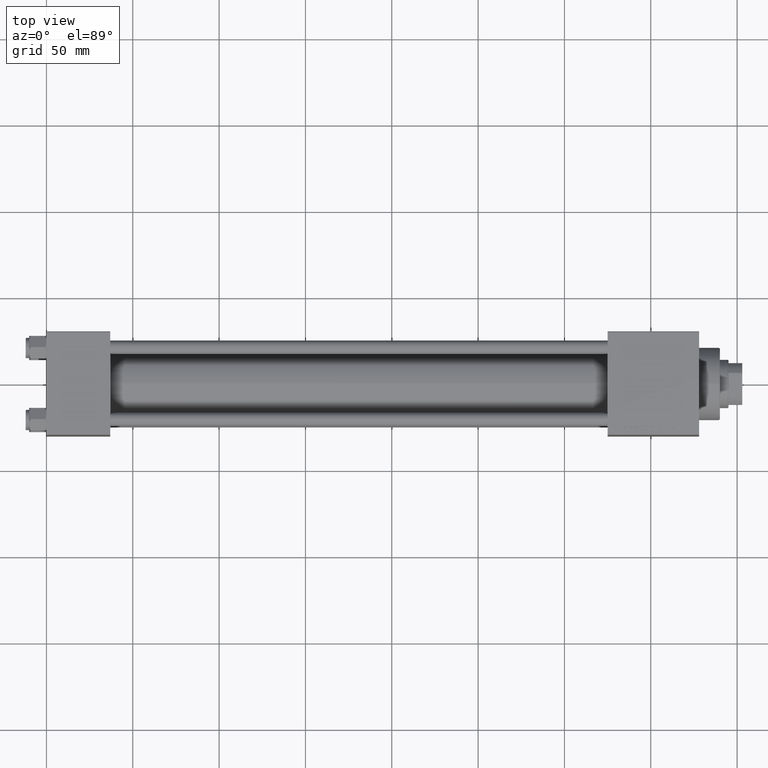
[diagram: clean part render]
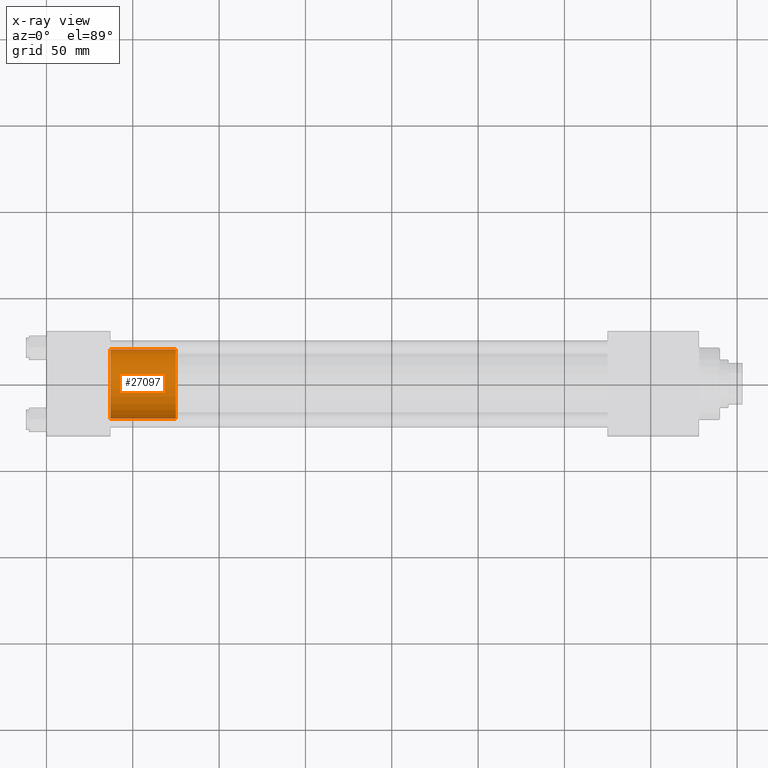
[diagram: x-ray — body ghosted, one internal face saturated and labeled with its STEP entity id]
A machine part, top view, then the same camera in x-ray: the body is ghosted and one INTERNAL B-rep face — a face not visible from any outside direction — is saturated and labeled: STEP entity #27097.
In plain terms, the highlighted cylindrical surface (edge-blend (fillet) strip) has radius 20 mm, axis along (-1, 0, 0).
Its self-contained STEP definition (entity closure, byte-faithful):
#242 = FACE_OUTER_BOUND ( 'NONE', #21434, .T. ) ;
#2181 = CARTESIAN_POINT ( 'NONE',  ( 0.000000000000000000, 0.000000000000000000, 0.000000000000000000 ) ) ;
#5702 = VERTEX_POINT ( 'NONE', #17716 ) ;
#6785 = VERTEX_POINT ( 'NONE', #23284 ) ;
#7461 = AXIS2_PLACEMENT_3D ( 'NONE', #2181, #17166, #29107 ) ;
#8502 = DIRECTION ( 'NONE',  ( -0.000000000000000000, -0.000000000000000000, -1.000000000000000000 ) ) ;
#8808 = ORIENTED_EDGE ( 'NONE', *, *, #25672, .T. ) ;
#9261 = CARTESIAN_POINT ( 'NONE',  ( 20.00000000000000000, 2.449293598294706513E-15, 38.00000000000000000 ) ) ;
#9352 = VERTEX_POINT ( 'NONE', #25105 ) ;
#10478 = AXIS2_PLACEMENT_3D ( 'NONE', #31158, #50208, #15430 ) ;
#11280 = EDGE_CURVE ( 'NONE', #27305, #5702, #39970, .T. ) ;
#11905 = CYLINDRICAL_SURFACE ( 'NONE', #43050, 20.00000000000000000 ) ;
#12154 = DIRECTION ( 'NONE',  ( -1.000000000000000000, 0.000000000000000000, 0.000000000000000000 ) ) ;
#12285 = CIRCLE ( 'NONE', #7461, 20.00000000000000000 ) ;
#15187 = EDGE_CURVE ( 'NONE', #27305, #9352, #33200, .T. ) ;
#15430 = DIRECTION ( 'NONE',  ( 1.000000000000000000, 0.000000000000000000, 0.000000000000000000 ) ) ;
#17166 = DIRECTION ( 'NONE',  ( 0.000000000000000000, 0.000000000000000000, 1.000000000000000000 ) ) ;
#17716 = CARTESIAN_POINT ( 'NONE',  ( 20.00000000000000000, 2.449293598294706513E-15, 0.000000000000000000 ) ) ;
#19319 = ORIENTED_EDGE ( 'NONE', *, *, #39526, .F. ) ;
#20853 = VECTOR ( 'NONE', #8502, 1000.000000000000000 ) ;
#21249 = LINE ( 'NONE', #25072, #26606 ) ;
#21434 = EDGE_LOOP ( 'NONE', ( #29884, #34533, #8808, #19319 ) ) ;
#23284 = CARTESIAN_POINT ( 'NONE',  ( -20.00000000000000000, 0.000000000000000000, 0.000000000000000000 ) ) ;
#25072 = CARTESIAN_POINT ( 'NONE',  ( -20.00000000000000000, 0.000000000000000000, 38.00000000000000000 ) ) ;
#25105 = CARTESIAN_POINT ( 'NONE',  ( -20.00000000000000000, 0.000000000000000000, 38.00000000000000000 ) ) ;
#25672 = EDGE_CURVE ( 'NONE', #5702, #6785, #12285, .T. ) ;
#26606 = VECTOR ( 'NONE', #40524, 1000.000000000000000 ) ;
#27097 = ADVANCED_FACE ( 'NONE', ( #242 ), #11905, .T. ) ;
#27305 = VERTEX_POINT ( 'NONE', #28090 ) ;
#28090 = CARTESIAN_POINT ( 'NONE',  ( 20.00000000000000000, 2.449293598294706513E-15, 38.00000000000000000 ) ) ;
#29107 = DIRECTION ( 'NONE',  ( 1.000000000000000000, 0.000000000000000000, 0.000000000000000000 ) ) ;
#29884 = ORIENTED_EDGE ( 'NONE', *, *, #15187, .F. ) ;
#31158 = CARTESIAN_POINT ( 'NONE',  ( 0.000000000000000000, 0.000000000000000000, 38.00000000000000000 ) ) ;
#33200 = CIRCLE ( 'NONE', #10478, 20.00000000000000000 ) ;
#34533 = ORIENTED_EDGE ( 'NONE', *, *, #11280, .T. ) ;
#38821 = DIRECTION ( 'NONE',  ( -0.000000000000000000, -0.000000000000000000, -1.000000000000000000 ) ) ;
#39526 = EDGE_CURVE ( 'NONE', #9352, #6785, #21249, .T. ) ;
#39816 = CARTESIAN_POINT ( 'NONE',  ( 0.000000000000000000, 0.000000000000000000, 38.00000000000000000 ) ) ;
#39970 = LINE ( 'NONE', #9261, #20853 ) ;
#40524 = DIRECTION ( 'NONE',  ( -0.000000000000000000, -0.000000000000000000, -1.000000000000000000 ) ) ;
#43050 = AXIS2_PLACEMENT_3D ( 'NONE', #39816, #38821, #12154 ) ;
#50208 = DIRECTION ( 'NONE',  ( 0.000000000000000000, 0.000000000000000000, 1.000000000000000000 ) ) ;